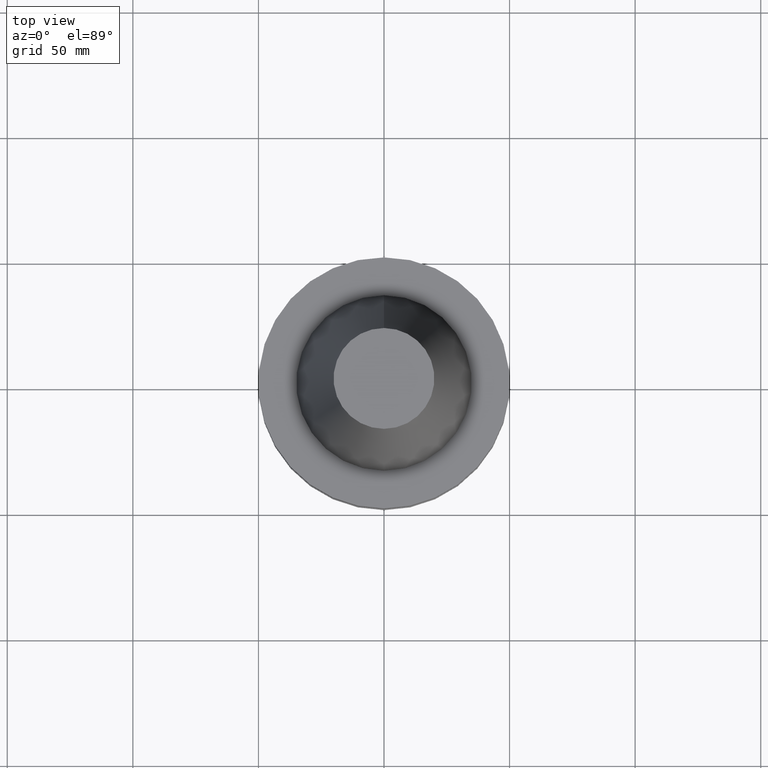
[diagram: clean part render]
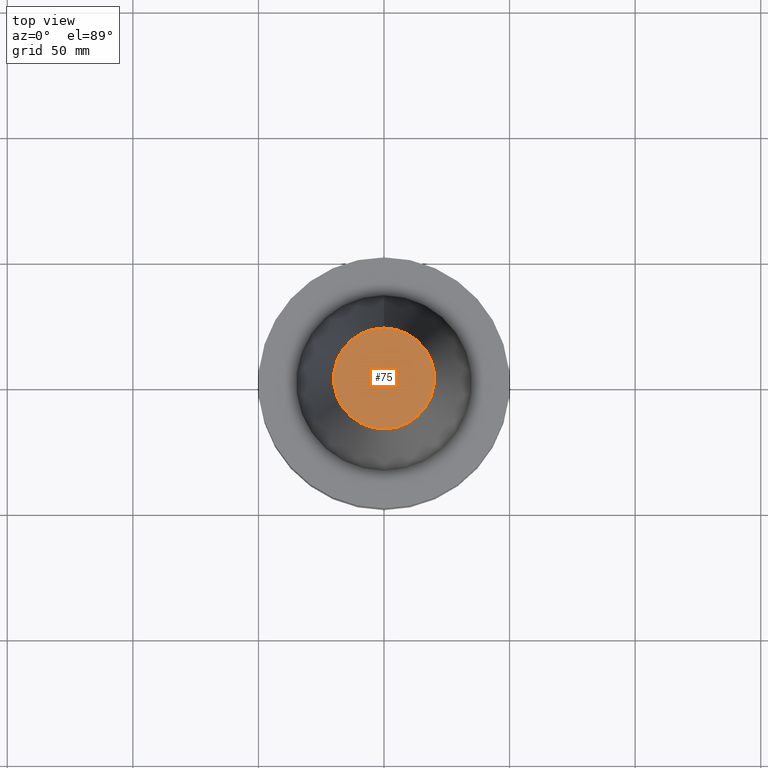
[diagram: same view with one face highlighted and labeled with its STEP entity id]
A machine part, top view. The second image highlights one B-rep face of the part: STEP entity #75.
In plain terms, the highlighted planar face has unit normal (-0, -0, 1).
Its self-contained STEP definition (entity closure, byte-faithful):
#75=ADVANCED_FACE('',(#91),#92,.T.);
#91=FACE_OUTER_BOUND('',#134,.T.);
#92=PLANE('',#135);
#134=EDGE_LOOP('',(#177));
#135=AXIS2_PLACEMENT_3D('',#178,#179,#180);
#177=ORIENTED_EDGE('',*,*,#250,.F.);
#178=CARTESIAN_POINT('',(-6.23345220766003E-015,10.0395833325942,101.8));
#179=DIRECTION('',(-6.12323399573677E-017,-1.22464679914735E-016,1.0));
#180=DIRECTION('',(1.23259516440783E-032,-1.0,-1.22464679914735E-016));
#250=EDGE_CURVE('',#264,#264,#265,.T.);
#264=VERTEX_POINT('',#292);
#265=CIRCLE('',#293,20.0791666651885);
#292=CARTESIAN_POINT('',(-6.23345220766003E-015,20.0791666651884,101.8));
#293=AXIS2_PLACEMENT_3D('',#320,#321,#322);
#320=CARTESIAN_POINT('',(-6.23345220766003E-015,-1.24669044153201E-014,101.8));
#321=DIRECTION('',(6.12323399573677E-017,1.22464679914735E-016,-1.0));
#322=DIRECTION('',(-1.23259516440783E-032,1.0,1.22464679914735E-016));